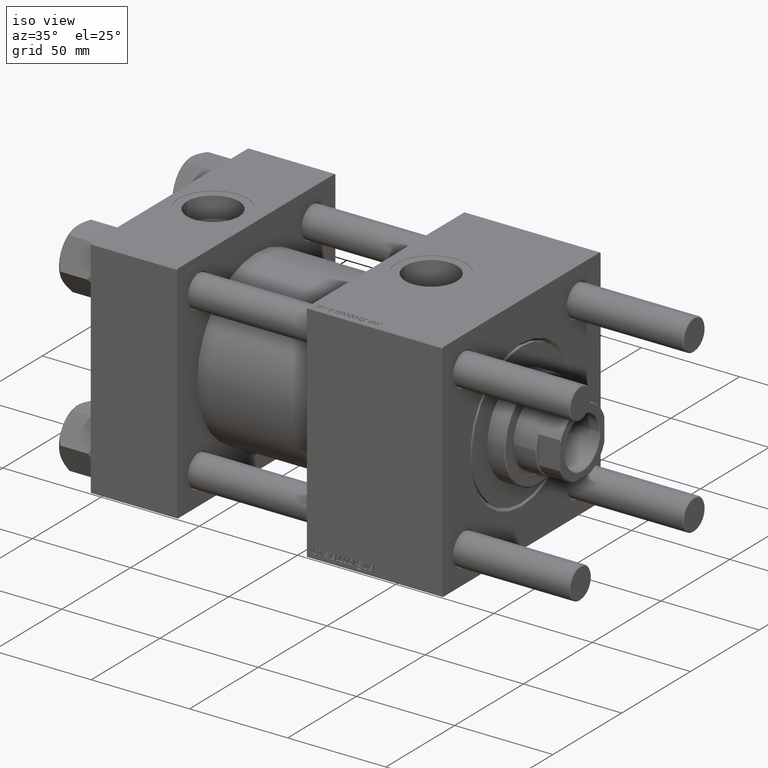
[diagram: clean part render]
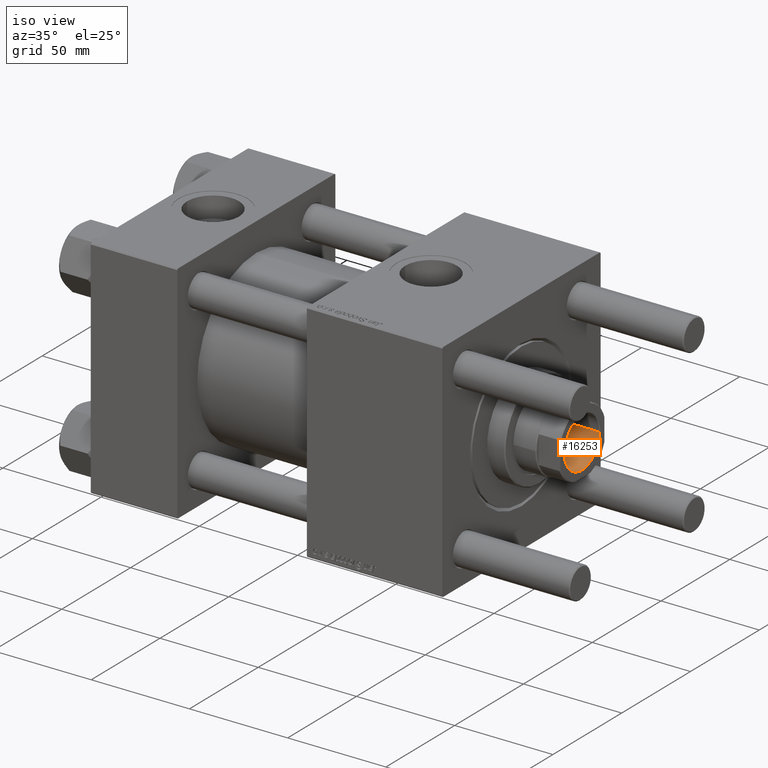
[diagram: same view with one face highlighted and labeled with its STEP entity id]
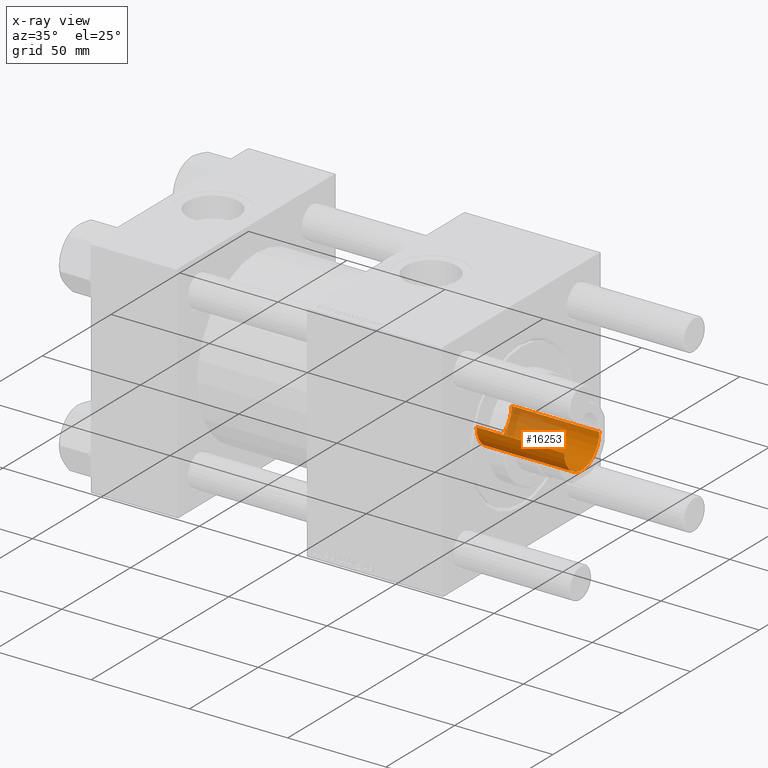
[diagram: x-ray of the same camera — body ghosted, the highlighted face saturated]
A machine part, iso view. The second image highlights one B-rep face of the part: STEP entity #16253.
The next image is the same camera in x-ray: the body ghosted, the highlighted face saturated — about 27% of this face is hidden behind the body in this view.
In plain terms, the highlighted cylindrical surface (edge-blend (fillet) strip) has radius 12.75 mm, axis along (1, 0, 0).
Its self-contained STEP definition (entity closure, byte-faithful):
#1755 = DIRECTION ( 'NONE',  ( 0.000000000000000000, 0.000000000000000000, 1.000000000000000000 ) ) ;
#2250 = AXIS2_PLACEMENT_3D ( 'NONE', #55203, #1755, #6098 ) ;
#2598 = ORIENTED_EDGE ( 'NONE', *, *, #43657, .F. ) ;
#3254 = VERTEX_POINT ( 'NONE', #14556 ) ;
#4091 = DIRECTION ( 'NONE',  ( 1.000000000000000000, 0.000000000000000000, 0.000000000000000000 ) ) ;
#5584 = ORIENTED_EDGE ( 'NONE', *, *, #40386, .T. ) ;
#6079 = EDGE_CURVE ( 'NONE', #30008, #27163, #43216, .T. ) ;
#6098 = DIRECTION ( 'NONE',  ( 1.000000000000000000, 0.000000000000000000, 0.000000000000000000 ) ) ;
#8555 = CARTESIAN_POINT ( 'NONE',  ( -12.74999999999999112, 1.561424668912874125E-15, 165.7000000000000455 ) ) ;
#13005 = DIRECTION ( 'NONE',  ( 1.000000000000000000, 0.000000000000000000, 0.000000000000000000 ) ) ;
#14556 = CARTESIAN_POINT ( 'NONE',  ( 12.74999999999998934, 0.000000000000000000, 121.0000000000000142 ) ) ;
#16253 = ADVANCED_FACE ( 'NONE', ( #16801 ), #51474, .F. ) ;
#16801 = FACE_OUTER_BOUND ( 'NONE', #28255, .T. ) ;
#16846 = CIRCLE ( 'NONE', #56536, 12.74999999999998934 ) ;
#20986 = LINE ( 'NONE', #52185, #55502 ) ;
#21383 = CARTESIAN_POINT ( 'NONE',  ( -12.74999999999998934, 1.561424668912873928E-15, 121.0000000000000142 ) ) ;
#24458 = DIRECTION ( 'NONE',  ( -0.000000000000000000, -0.000000000000000000, 1.000000000000000000 ) ) ;
#26441 = DIRECTION ( 'NONE',  ( -0.000000000000000000, -0.000000000000000000, 1.000000000000000000 ) ) ;
#27163 = VERTEX_POINT ( 'NONE', #8555 ) ;
#28255 = EDGE_LOOP ( 'NONE', ( #42660, #2598, #5584, #51596 ) ) ;
#30008 = VERTEX_POINT ( 'NONE', #21383 ) ;
#30204 = CARTESIAN_POINT ( 'NONE',  ( -12.74999999999999112, 1.561424668912874125E-15, 166.0000000000000000 ) ) ;
#33071 = VECTOR ( 'NONE', #26441, 1000.000000000000000 ) ;
#38189 = DIRECTION ( 'NONE',  ( -0.000000000000000000, -0.000000000000000000, 1.000000000000000000 ) ) ;
#38755 = CARTESIAN_POINT ( 'NONE',  ( 0.000000000000000000, 0.000000000000000000, 166.0000000000000000 ) ) ;
#40386 = EDGE_CURVE ( 'NONE', #3254, #52013, #20986, .T. ) ;
#40948 = CARTESIAN_POINT ( 'NONE',  ( 0.000000000000000000, 0.000000000000000000, 121.0000000000000142 ) ) ;
#42660 = ORIENTED_EDGE ( 'NONE', *, *, #6079, .F. ) ;
#43216 = LINE ( 'NONE', #30204, #33071 ) ;
#43345 = DIRECTION ( 'NONE',  ( -0.000000000000000000, -0.000000000000000000, 1.000000000000000000 ) ) ;
#43657 = EDGE_CURVE ( 'NONE', #3254, #30008, #16846, .T. ) ;
#49395 = EDGE_CURVE ( 'NONE', #52013, #27163, #53935, .T. ) ;
#51474 = CYLINDRICAL_SURFACE ( 'NONE', #51836, 12.74999999999999112 ) ;
#51596 = ORIENTED_EDGE ( 'NONE', *, *, #49395, .T. ) ;
#51836 = AXIS2_PLACEMENT_3D ( 'NONE', #38755, #38189, #4091 ) ;
#52013 = VERTEX_POINT ( 'NONE', #55583 ) ;
#52185 = CARTESIAN_POINT ( 'NONE',  ( 12.74999999999999112, 0.000000000000000000, 166.0000000000000000 ) ) ;
#53935 = CIRCLE ( 'NONE', #2250, 12.74999999999999112 ) ;
#55203 = CARTESIAN_POINT ( 'NONE',  ( 0.000000000000000000, 0.000000000000000000, 165.7000000000000455 ) ) ;
#55502 = VECTOR ( 'NONE', #24458, 1000.000000000000000 ) ;
#55583 = CARTESIAN_POINT ( 'NONE',  ( 12.74999999999999112, 0.000000000000000000, 165.7000000000000455 ) ) ;
#56536 = AXIS2_PLACEMENT_3D ( 'NONE', #40948, #43345, #13005 ) ;